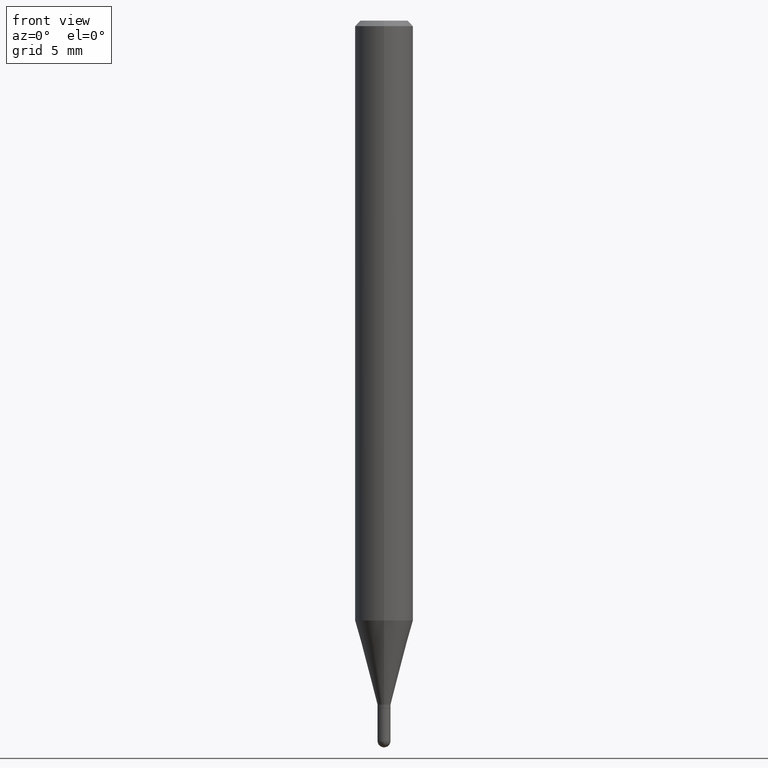
[diagram: clean part render]
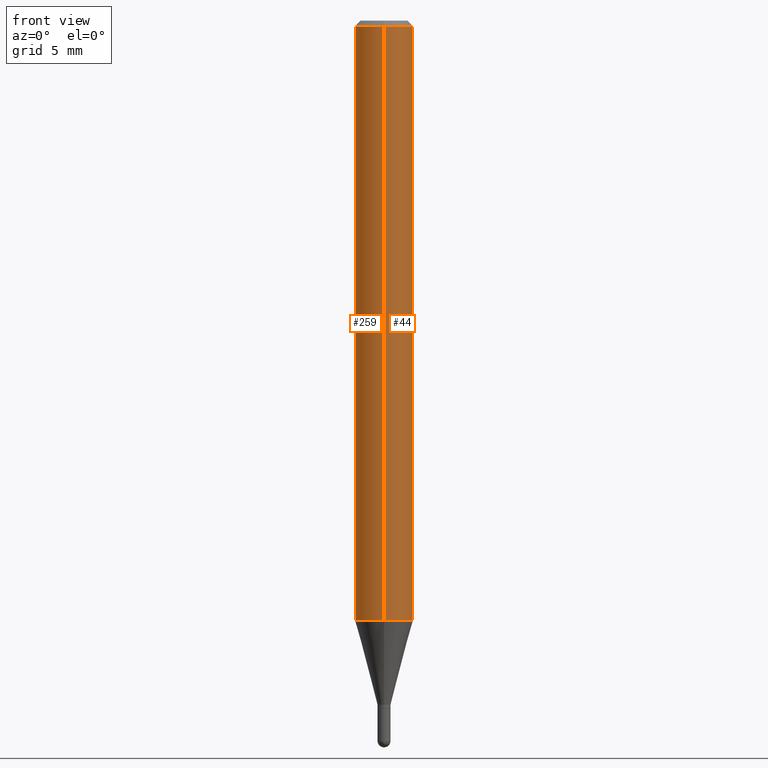
[diagram: same view with one multi-face feature highlighted, each face labeled with its STEP entity id]
A machine part, front view. The highlighted faces form ONE feature: a constant-radius fillet chain: 2 tangent blend faces with common blend radius 2.0002 mm. The faces share edges in the B-rep.
Their STEP definitions:
[1] entity #44 (Cylinder):
#2 = DIRECTION ( 'NONE',  ( -6.982962677686264344E-15, -1.000000000000000000, 3.491499918598658071E-15 ) ) ;
#4 = DIRECTION ( 'NONE',  ( -2.445455832011205727E-29, 3.491499918598658860E-15, 1.000000000000000000 ) ) ;
#20 = EDGE_CURVE ( 'NONE', #512, #138, #277, .T. ) ;
#22 = VECTOR ( 'NONE', #116, 39.37007874015748143 ) ;
#28 = DIRECTION ( 'NONE',  ( -2.445455832011205727E-29, 3.491499918598658860E-15, 1.000000000000000000 ) ) ;
#41 = CYLINDRICAL_SURFACE ( 'NONE', #175, 0.07875000000000000056 ) ;
#44 = ADVANCED_FACE ( 'NONE', ( #320 ), #41, .T. ) ;
#52 = ORIENTED_EDGE ( 'NONE', *, *, #20, .F. ) ;
#82 = CARTESIAN_POINT ( 'NONE',  ( 5.595524044111183434E-16, 0.07874999999999431066, -1.624658298197920070 ) ) ;
#86 = ORIENTED_EDGE ( 'NONE', *, *, #185, .T. ) ;
#88 = DIRECTION ( 'NONE',  ( -2.445455832011205727E-29, 3.491499918598658860E-15, 1.000000000000000000 ) ) ;
#91 = CIRCLE ( 'NONE', #127, 0.07875000000000000056 ) ;
#101 = CARTESIAN_POINT ( 'NONE',  ( 5.595524044111186392E-16, 0.07874999999999994504, -0.01500000000000004108 ) ) ;
#116 = DIRECTION ( 'NONE',  ( -2.445455832011205727E-29, 3.491499918598658860E-15, 1.000000000000000000 ) ) ;
#127 = AXIS2_PLACEMENT_3D ( 'NONE', #278, #88, #438 ) ;
#128 = AXIS2_PLACEMENT_3D ( 'NONE', #179, #28, #298 ) ;
#138 = VERTEX_POINT ( 'NONE', #304 ) ;
#175 = AXIS2_PLACEMENT_3D ( 'NONE', #479, #475, #2 ) ;
#179 = CARTESIAN_POINT ( 'NONE',  ( 3.668183748016751084E-31, -5.237249877897906520E-17, -0.01499999999999976526 ) ) ;
#185 = EDGE_CURVE ( 'NONE', #512, #238, #91, .T. ) ;
#220 = EDGE_CURVE ( 'NONE', #238, #386, #315, .T. ) ;
#223 = VECTOR ( 'NONE', #4, 39.37007874015748143 ) ;
#238 = VERTEX_POINT ( 'NONE', #82 ) ;
#244 = EDGE_LOOP ( 'NONE', ( #86, #313, #357, #52 ) ) ;
#277 = LINE ( 'NONE', #403, #223 ) ;
#278 = CARTESIAN_POINT ( 'NONE',  ( 3.973030110353503053E-29, -5.672494315908672324E-15, -1.624658298197919848 ) ) ;
#298 = DIRECTION ( 'NONE',  ( -6.982962677686264344E-15, -1.000000000000000000, 3.496114991891765576E-15 ) ) ;
#304 = CARTESIAN_POINT ( 'NONE',  ( -5.499083108677930499E-16, -0.07875000000000004219, -0.01499999999999948944 ) ) ;
#313 = ORIENTED_EDGE ( 'NONE', *, *, #220, .T. ) ;
#315 = LINE ( 'NONE', #510, #22 ) ;
#320 = FACE_OUTER_BOUND ( 'NONE', #244, .T. ) ;
#356 = CIRCLE ( 'NONE', #128, 0.07875000000000000056 ) ;
#357 = ORIENTED_EDGE ( 'NONE', *, *, #440, .F. ) ;
#386 = VERTEX_POINT ( 'NONE', #101 ) ;
#388 = CARTESIAN_POINT ( 'NONE',  ( -5.499083108677539026E-16, -0.07875000000000567657, -1.624658298197919626 ) ) ;
#403 = CARTESIAN_POINT ( 'NONE',  ( -5.499083108677933457E-16, -0.07875000000000000056, 2.749556185896443340E-16 ) ) ;
#438 = DIRECTION ( 'NONE',  ( -6.982962677686264344E-15, -1.000000000000000000, 3.469013325287953293E-15 ) ) ;
#440 = EDGE_CURVE ( 'NONE', #138, #386, #356, .T. ) ;
#475 = DIRECTION ( 'NONE',  ( -2.445455832011205727E-29, 3.491499918598658860E-15, 1.000000000000000000 ) ) ;
#479 = CARTESIAN_POINT ( 'NONE',  ( 0.000000000000000000, 0.000000000000000000, 0.000000000000000000 ) ) ;
#510 = CARTESIAN_POINT ( 'NONE',  ( 5.595524044110787031E-16, 0.07875000000000000056, -2.749556185896443340E-16 ) ) ;
#512 = VERTEX_POINT ( 'NONE', #388 ) ;
[2] entity #259 (Cylinder):
#4 = DIRECTION ( 'NONE',  ( -2.445455832011205727E-29, 3.491499918598658860E-15, 1.000000000000000000 ) ) ;
#20 = EDGE_CURVE ( 'NONE', #512, #138, #277, .T. ) ;
#22 = VECTOR ( 'NONE', #116, 39.37007874015748143 ) ;
#38 = CIRCLE ( 'NONE', #199, 0.07875000000000000056 ) ;
#73 = EDGE_LOOP ( 'NONE', ( #358, #341, #439, #249 ) ) ;
#79 = DIRECTION ( 'NONE',  ( -2.445455832011205727E-29, 3.491499918598658860E-15, 1.000000000000000000 ) ) ;
#82 = CARTESIAN_POINT ( 'NONE',  ( 5.595524044111183434E-16, 0.07874999999999431066, -1.624658298197920070 ) ) ;
#101 = CARTESIAN_POINT ( 'NONE',  ( 5.595524044111186392E-16, 0.07874999999999994504, -0.01500000000000004108 ) ) ;
#105 = CARTESIAN_POINT ( 'NONE',  ( 3.973030110353503053E-29, -5.672494315908672324E-15, -1.624658298197919848 ) ) ;
#112 = EDGE_CURVE ( 'NONE', #386, #138, #38, .T. ) ;
#116 = DIRECTION ( 'NONE',  ( -2.445455832011205727E-29, 3.491499918598658860E-15, 1.000000000000000000 ) ) ;
#138 = VERTEX_POINT ( 'NONE', #304 ) ;
#146 = AXIS2_PLACEMENT_3D ( 'NONE', #105, #307, #183 ) ;
#183 = DIRECTION ( 'NONE',  ( -6.982962677686264344E-15, -1.000000000000000000, 3.469013325287953293E-15 ) ) ;
#199 = AXIS2_PLACEMENT_3D ( 'NONE', #497, #486, #286 ) ;
#220 = EDGE_CURVE ( 'NONE', #238, #386, #315, .T. ) ;
#223 = VECTOR ( 'NONE', #4, 39.37007874015748143 ) ;
#238 = VERTEX_POINT ( 'NONE', #82 ) ;
#248 = AXIS2_PLACEMENT_3D ( 'NONE', #435, #79, #312 ) ;
#249 = ORIENTED_EDGE ( 'NONE', *, *, #112, .F. ) ;
#259 = ADVANCED_FACE ( 'NONE', ( #268 ), #470, .T. ) ;
#268 = FACE_OUTER_BOUND ( 'NONE', #73, .T. ) ;
#277 = LINE ( 'NONE', #403, #223 ) ;
#286 = DIRECTION ( 'NONE',  ( -6.982962677686264344E-15, -1.000000000000000000, 3.496114991891765576E-15 ) ) ;
#304 = CARTESIAN_POINT ( 'NONE',  ( -5.499083108677930499E-16, -0.07875000000000004219, -0.01499999999999948944 ) ) ;
#307 = DIRECTION ( 'NONE',  ( -2.445455832011205727E-29, 3.491499918598658860E-15, 1.000000000000000000 ) ) ;
#312 = DIRECTION ( 'NONE',  ( -6.982962677686264344E-15, -1.000000000000000000, 3.491499918598658071E-15 ) ) ;
#315 = LINE ( 'NONE', #510, #22 ) ;
#341 = ORIENTED_EDGE ( 'NONE', *, *, #467, .T. ) ;
#358 = ORIENTED_EDGE ( 'NONE', *, *, #220, .F. ) ;
#363 = CIRCLE ( 'NONE', #146, 0.07875000000000000056 ) ;
#386 = VERTEX_POINT ( 'NONE', #101 ) ;
#388 = CARTESIAN_POINT ( 'NONE',  ( -5.499083108677539026E-16, -0.07875000000000567657, -1.624658298197919626 ) ) ;
#403 = CARTESIAN_POINT ( 'NONE',  ( -5.499083108677933457E-16, -0.07875000000000000056, 2.749556185896443340E-16 ) ) ;
#435 = CARTESIAN_POINT ( 'NONE',  ( 0.000000000000000000, 0.000000000000000000, 0.000000000000000000 ) ) ;
#439 = ORIENTED_EDGE ( 'NONE', *, *, #20, .T. ) ;
#467 = EDGE_CURVE ( 'NONE', #238, #512, #363, .T. ) ;
#470 = CYLINDRICAL_SURFACE ( 'NONE', #248, 0.07875000000000000056 ) ;
#486 = DIRECTION ( 'NONE',  ( -2.445455832011205727E-29, 3.491499918598658860E-15, 1.000000000000000000 ) ) ;
#497 = CARTESIAN_POINT ( 'NONE',  ( 3.668183748016751084E-31, -5.237249877897906520E-17, -0.01499999999999976526 ) ) ;
#510 = CARTESIAN_POINT ( 'NONE',  ( 5.595524044110787031E-16, 0.07875000000000000056, -2.749556185896443340E-16 ) ) ;
#512 = VERTEX_POINT ( 'NONE', #388 ) ;